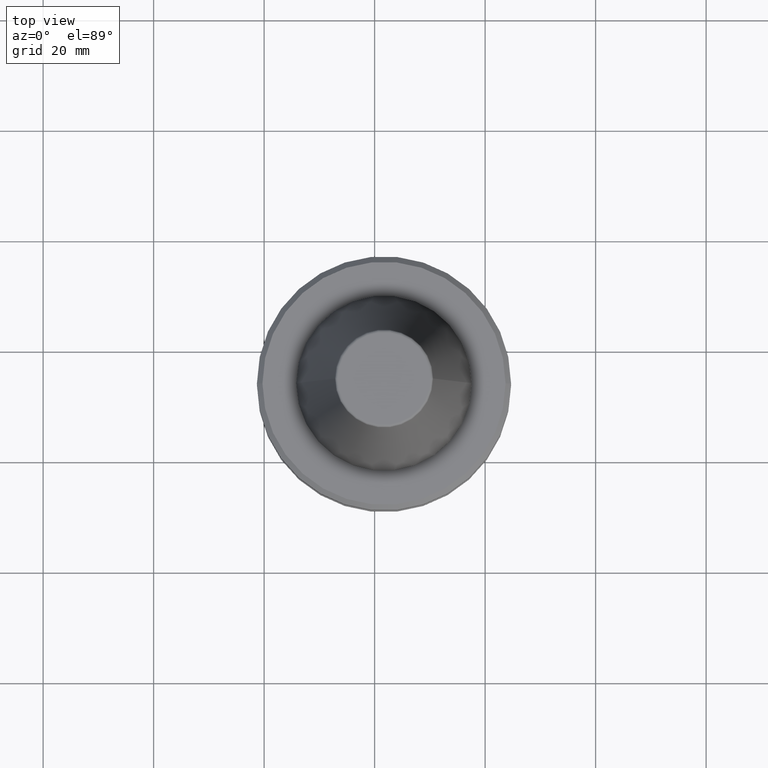
[diagram: clean part render]
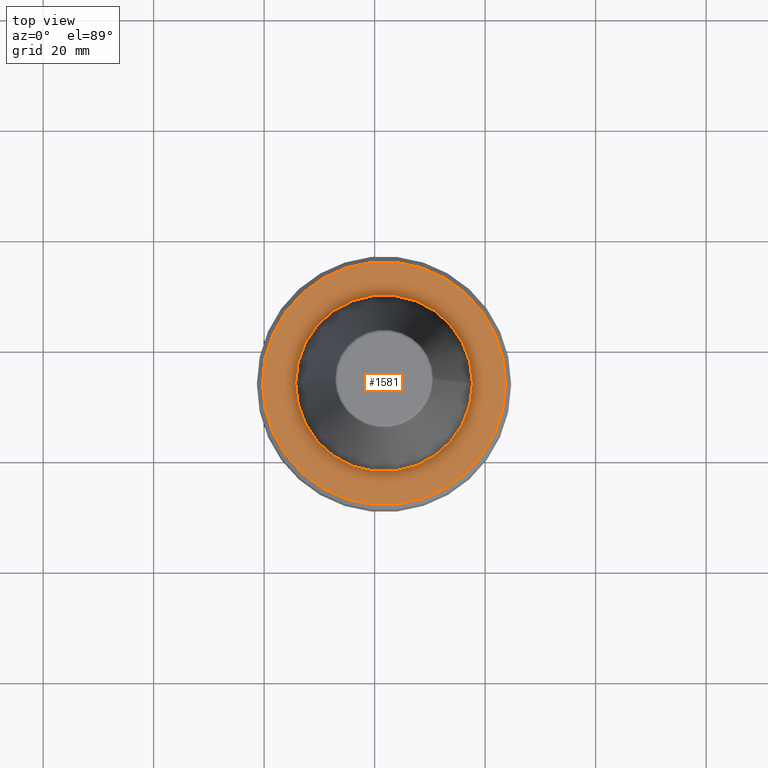
[diagram: same view with one face highlighted and labeled with its STEP entity id]
A machine part, top view. The second image highlights one B-rep face of the part: STEP entity #1581.
In plain terms, the highlighted planar face has unit normal (0, 0, -1).
Its self-contained STEP definition (entity closure, byte-faithful):
#21 = AXIS2_PLACEMENT_3D ( 'NONE', #2433, #2871, #150 ) ;
#150 = DIRECTION ( 'NONE',  ( 1.000000000000000000, 0.0000000000000000000, 0.0000000000000000000 ) ) ;
#170 = DIRECTION ( 'NONE',  ( -0.0000000000000000000, -0.0000000000000000000, 1.000000000000000000 ) ) ;
#231 = CARTESIAN_POINT ( 'NONE',  ( 57.69949667897920200, 53.21725052380196500, 74.07808018129308900 ) ) ;
#279 = AXIS2_PLACEMENT_3D ( 'NONE', #1137, #696, #3404 ) ;
#399 = ORIENTED_EDGE ( 'NONE', *, *, #1121, .T. ) ;
#417 = ORIENTED_EDGE ( 'NONE', *, *, #889, .T. ) ;
#538 = EDGE_CURVE ( 'NONE', #2516, #2239, #1642, .T. ) ;
#539 = VERTEX_POINT ( 'NONE', #3374 ) ;
#549 = CIRCLE ( 'NONE', #3201, 22.00000000000001400 ) ;
#662 = FACE_BOUND ( 'NONE', #792, .T. ) ;
#674 = CARTESIAN_POINT ( 'NONE',  ( 41.69949667897863300, 53.21725052380196500, 74.07808018129335900 ) ) ;
#696 = DIRECTION ( 'NONE',  ( 0.0000000000000000000, 0.0000000000000000000, -1.000000000000000000 ) ) ;
#792 = EDGE_LOOP ( 'NONE', ( #2835, #1797 ) ) ;
#889 = EDGE_CURVE ( 'NONE', #2545, #539, #549, .T. ) ;
#1072 = CARTESIAN_POINT ( 'NONE',  ( 19.69949667897861200, 53.21725052380196500, 74.07808018129335900 ) ) ;
#1121 = EDGE_CURVE ( 'NONE', #539, #2545, #2551, .T. ) ;
#1137 = CARTESIAN_POINT ( 'NONE',  ( 41.69949667897863300, 75.21725052380199400, 74.07808018129335900 ) ) ;
#1278 = EDGE_LOOP ( 'NONE', ( #417, #399 ) ) ;
#1288 = DIRECTION ( 'NONE',  ( 1.000000000000000000, 0.0000000000000000000, 0.0000000000000000000 ) ) ;
#1330 = CARTESIAN_POINT ( 'NONE',  ( 41.69949667897863300, 53.21725052380196500, 74.07808018129335900 ) ) ;
#1538 = FACE_OUTER_BOUND ( 'NONE', #1278, .T. ) ;
#1581 = ADVANCED_FACE ( 'NONE', ( #662, #1538 ), #1966, .F. ) ;
#1642 = CIRCLE ( 'NONE', #21, 16.00000000000045800 ) ;
#1707 = CIRCLE ( 'NONE', #2940, 16.00000000000045800 ) ;
#1797 = ORIENTED_EDGE ( 'NONE', *, *, #538, .F. ) ;
#1895 = DIRECTION ( 'NONE',  ( 1.000000000000000000, 0.0000000000000000000, 0.0000000000000000000 ) ) ;
#1897 = DIRECTION ( 'NONE',  ( -0.0000000000000000000, -0.0000000000000000000, 1.000000000000000000 ) ) ;
#1966 = PLANE ( 'NONE',  #279 ) ;
#2033 = AXIS2_PLACEMENT_3D ( 'NONE', #3375, #170, #1895 ) ;
#2239 = VERTEX_POINT ( 'NONE', #231 ) ;
#2308 = CARTESIAN_POINT ( 'NONE',  ( 25.69949667897806500, 53.21725052380196500, 74.07808018129308900 ) ) ;
#2433 = CARTESIAN_POINT ( 'NONE',  ( 41.69949667897863300, 53.21725052380196500, 74.07808018129335900 ) ) ;
#2516 = VERTEX_POINT ( 'NONE', #2308 ) ;
#2545 = VERTEX_POINT ( 'NONE', #1072 ) ;
#2551 = CIRCLE ( 'NONE', #2033, 22.00000000000001400 ) ;
#2835 = ORIENTED_EDGE ( 'NONE', *, *, #3301, .F. ) ;
#2871 = DIRECTION ( 'NONE',  ( -0.0000000000000000000, -0.0000000000000000000, 1.000000000000000000 ) ) ;
#2940 = AXIS2_PLACEMENT_3D ( 'NONE', #1330, #1897, #3258 ) ;
#3201 = AXIS2_PLACEMENT_3D ( 'NONE', #674, #3221, #1288 ) ;
#3221 = DIRECTION ( 'NONE',  ( -0.0000000000000000000, -0.0000000000000000000, 1.000000000000000000 ) ) ;
#3258 = DIRECTION ( 'NONE',  ( 1.000000000000000000, 0.0000000000000000000, 0.0000000000000000000 ) ) ;
#3301 = EDGE_CURVE ( 'NONE', #2239, #2516, #1707, .T. ) ;
#3374 = CARTESIAN_POINT ( 'NONE',  ( 63.69949667897864700, 53.21725052380196500, 74.07808018129335900 ) ) ;
#3375 = CARTESIAN_POINT ( 'NONE',  ( 41.69949667897863300, 53.21725052380196500, 74.07808018129335900 ) ) ;
#3404 = DIRECTION ( 'NONE',  ( -1.000000000000000000, 0.0000000000000000000, -0.0000000000000000000 ) ) ;